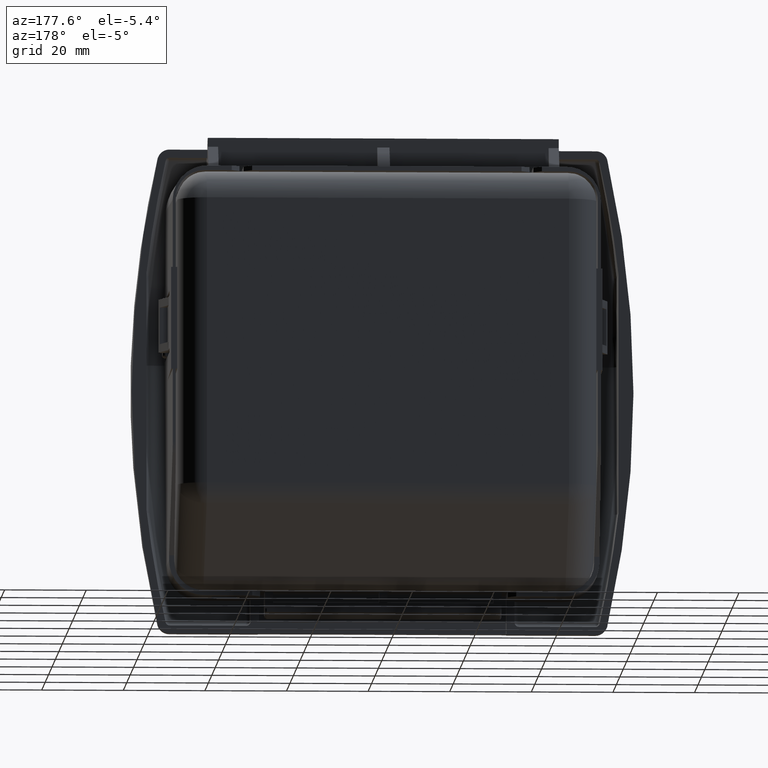
[diagram: clean part render]
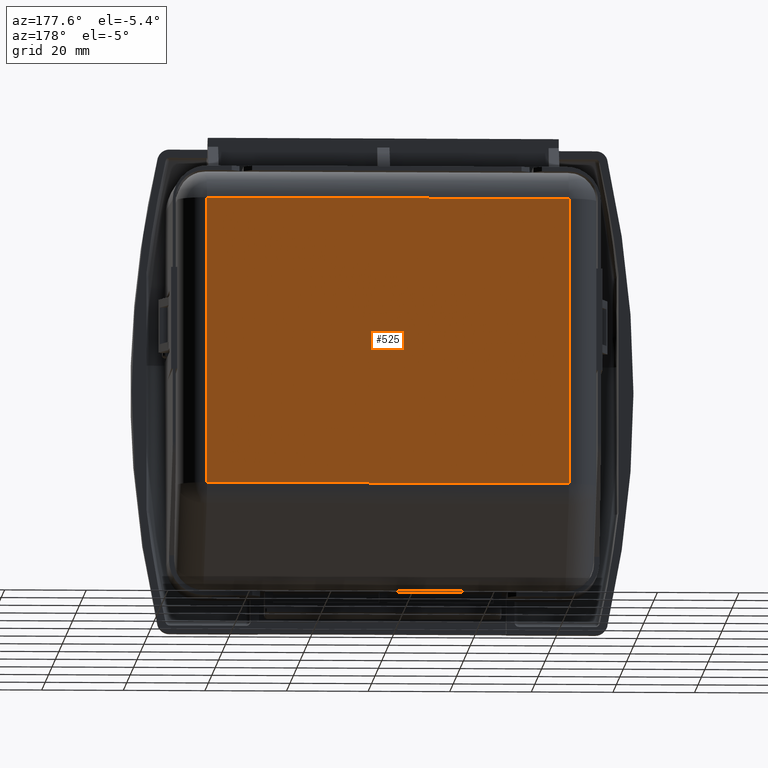
[diagram: same view with one face highlighted and labeled with its STEP entity id]
A machine part, auxiliary view. The second image highlights one B-rep face of the part: STEP entity #525.
In plain terms, the highlighted planar face has unit normal (0, 1, 0).
Its self-contained STEP definition (entity closure, byte-faithful):
#525=ADVANCED_FACE('',(#4624),#4623,.T.);
#4623=PLANE('',#11855);
#4624=FACE_OUTER_BOUND('',#11856,.T.);
#11852=CARTESIAN_POINT('',(-2.51720344491E+02,3.20000000000E+01,-3.23084886702E+01));
#11853=DIRECTION('',(0.00000000000E+00,1.00000000000E+00,0.00000000000E+00));
#11854=DIRECTION('',(0.00000000000E+00,0.00000000000E+00,1.00000000000E+00));
#11855=AXIS2_PLACEMENT_3D('',#11852,#11853,#11854);
#11856=EDGE_LOOP('',(#18276,#18277,#18278,#18279));
#18276=ORIENTED_EDGE('',*,*,#20883,.T.);
#18277=ORIENTED_EDGE('',*,*,#20921,.F.);
#18278=ORIENTED_EDGE('',*,*,#20889,.T.);
#18279=ORIENTED_EDGE('',*,*,#20893,.T.);
#20883=EDGE_CURVE('',#28334,#28327,#28335,.T.);
#20889=EDGE_CURVE('',#28372,#28373,#28374,.T.);
#20893=EDGE_CURVE('',#28373,#28334,#28400,.T.);
#20921=EDGE_CURVE('',#28372,#28327,#28583,.T.);
#28327=VERTEX_POINT('',#38012);
#28334=VERTEX_POINT('',#38017);
#28335=LINE('',#38018,#38019);
#28372=VERTEX_POINT('',#38040);
#28373=VERTEX_POINT('',#38041);
#28374=LINE('',#38042,#38043);
#28400=LINE('',#38058,#38059);
#28583=LINE('',#38168,#38169);
#38012=CARTESIAN_POINT('',(-1.54150344491E+02,3.20000000000E+01,4.47999999995E+01));
#38017=CARTESIAN_POINT('',(-2.42850344491E+02,3.20000000000E+01,4.47999999995E+01));
#38018=CARTESIAN_POINT('',(-2.42850344491E+02,3.20000000000E+01,4.47999999995E+01));
#38019=VECTOR('',#38020,8.87000000000E+01);
#38020=DIRECTION('',(1.00000000000E+00,0.00000000000E+00,0.00000000000E+00));
#38040=CARTESIAN_POINT('',(-1.54150344491E+02,3.20000000000E+01,-2.52986260639E+01));
#38041=CARTESIAN_POINT('',(-2.42850344491E+02,3.20000000000E+01,-2.52986260639E+01));
#38042=CARTESIAN_POINT('',(-1.54150344491E+02,3.20000000000E+01,-2.52986260639E+01));
#38043=VECTOR('',#38044,8.87000000000E+01);
#38044=DIRECTION('',(-1.00000000000E+00,0.00000000000E+00,0.00000000000E+00));
#38058=CARTESIAN_POINT('',(-2.42850344491E+02,3.20000000000E+01,-2.52986260639E+01));
#38059=VECTOR('',#38060,7.00986260634E+01);
#38060=DIRECTION('',(0.00000000000E+00,0.00000000000E+00,1.00000000000E+00));
#38168=CARTESIAN_POINT('',(-1.54150344491E+02,3.20000000000E+01,-2.52986260639E+01));
#38169=VECTOR('',#38170,7.00986260634E+01);
#38170=DIRECTION('',(0.00000000000E+00,0.00000000000E+00,1.00000000000E+00));